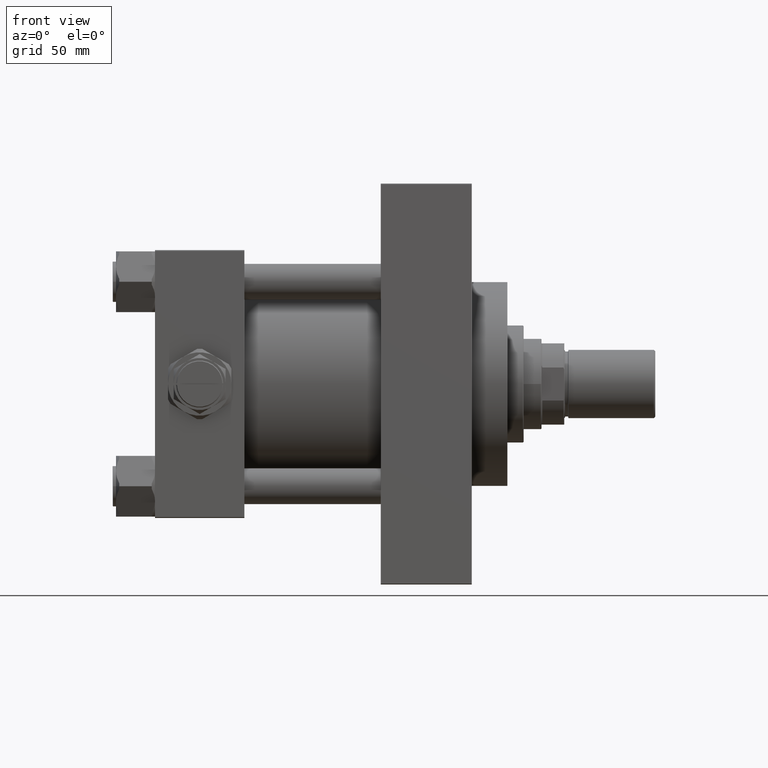
[diagram: clean part render]
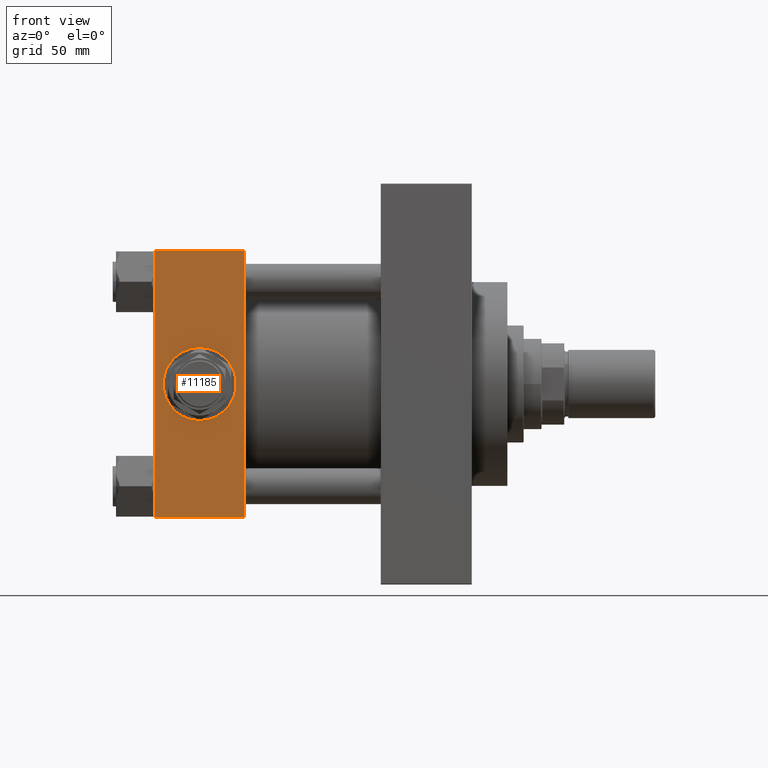
[diagram: same view with one face highlighted and labeled with its STEP entity id]
A machine part, front view. The second image highlights one B-rep face of the part: STEP entity #11185.
In plain terms, the highlighted planar face has unit normal (0, 1, -0).
Its self-contained STEP definition (entity closure, byte-faithful):
#602 = DIRECTION ( 'NONE',  ( 0.000000000000000000, -1.000000000000000000, -8.673617379884036705E-17 ) ) ;
#2237 = VERTEX_POINT ( 'NONE', #25948 ) ;
#2288 = ORIENTED_EDGE ( 'NONE', *, *, #45306, .T. ) ;
#2379 = LINE ( 'NONE', #30826, #13463 ) ;
#3202 = AXIS2_PLACEMENT_3D ( 'NONE', #5291, #36063, #44411 ) ;
#3345 = EDGE_CURVE ( 'NONE', #8961, #22411, #39315, .T. ) ;
#4733 = CARTESIAN_POINT ( 'NONE',  ( 55.00000000000000000, -82.49999999999997158, 82.50000000000001421 ) ) ;
#4941 = EDGE_LOOP ( 'NONE', ( #2288, #20155, #29588, #15335 ) ) ;
#5291 = CARTESIAN_POINT ( 'NONE',  ( 55.00000000000000000, -82.49999999999997158, 82.50000000000001421 ) ) ;
#6032 = FACE_OUTER_BOUND ( 'NONE', #4941, .T. ) ;
#8033 = DIRECTION ( 'NONE',  ( 0.000000000000000000, 0.000000000000000000, -1.000000000000000000 ) ) ;
#8961 = VERTEX_POINT ( 'NONE', #32134 ) ;
#9051 = EDGE_CURVE ( 'NONE', #2237, #22411, #30023, .T. ) ;
#9389 = EDGE_CURVE ( 'NONE', #8961, #43361, #41842, .T. ) ;
#11185 = ADVANCED_FACE ( 'NONE', ( #29008, #6032 ), #48679, .F. ) ;
#11674 = ORIENTED_EDGE ( 'NONE', *, *, #18645, .F. ) ;
#12301 = VERTEX_POINT ( 'NONE', #12810 ) ;
#12810 = CARTESIAN_POINT ( 'NONE',  ( 27.50000000000000355, -82.49999999999998579, 22.50000000000002132 ) ) ;
#13463 = VECTOR ( 'NONE', #46225, 1000.000000000000000 ) ;
#15258 = ORIENTED_EDGE ( 'NONE', *, *, #24891, .F. ) ;
#15335 = ORIENTED_EDGE ( 'NONE', *, *, #9389, .T. ) ;
#17240 = AXIS2_PLACEMENT_3D ( 'NONE', #23101, #602, #26884 ) ;
#18645 = EDGE_CURVE ( 'NONE', #12301, #43739, #18765, .T. ) ;
#18765 = CIRCLE ( 'NONE', #19608, 22.50000000000000711 ) ;
#19608 = AXIS2_PLACEMENT_3D ( 'NONE', #27231, #42630, #8033 ) ;
#20155 = ORIENTED_EDGE ( 'NONE', *, *, #9051, .T. ) ;
#22411 = VERTEX_POINT ( 'NONE', #46661 ) ;
#23101 = CARTESIAN_POINT ( 'NONE',  ( 27.50000000000000000, -82.49999999999998579, 1.387778780781445360E-14 ) ) ;
#23419 = EDGE_LOOP ( 'NONE', ( #15258, #11674 ) ) ;
#24891 = EDGE_CURVE ( 'NONE', #43739, #12301, #49497, .T. ) ;
#25575 = VECTOR ( 'NONE', #41416, 1000.000000000000000 ) ;
#25685 = CARTESIAN_POINT ( 'NONE',  ( 27.50000000000000000, -82.49999999999998579, -22.49999999999999289 ) ) ;
#25948 = CARTESIAN_POINT ( 'NONE',  ( 0.000000000000000000, -82.50000000000000000, -81.99999999999998579 ) ) ;
#26884 = DIRECTION ( 'NONE',  ( 0.000000000000000000, 0.000000000000000000, -1.000000000000000000 ) ) ;
#27231 = CARTESIAN_POINT ( 'NONE',  ( 27.50000000000000000, -82.49999999999998579, 1.387778780781445360E-14 ) ) ;
#29008 = FACE_BOUND ( 'NONE', #23419, .T. ) ;
#29588 = ORIENTED_EDGE ( 'NONE', *, *, #3345, .F. ) ;
#30023 = LINE ( 'NONE', #36154, #37889 ) ;
#30826 = CARTESIAN_POINT ( 'NONE',  ( 0.000000000000000000, -82.49999999999997158, 82.50000000000001421 ) ) ;
#32134 = CARTESIAN_POINT ( 'NONE',  ( 55.00000000000000000, -82.49999999999997158, 82.00000000000001421 ) ) ;
#33553 = CARTESIAN_POINT ( 'NONE',  ( 0.000000000000000000, -82.49999999999997158, 82.00000000000001421 ) ) ;
#33740 = VECTOR ( 'NONE', #42343, 1000.000000000000000 ) ;
#36063 = DIRECTION ( 'NONE',  ( 0.000000000000000000, 1.000000000000000000, -1.682156097916903588E-16 ) ) ;
#36154 = CARTESIAN_POINT ( 'NONE',  ( 55.00000000000000000, -82.50000000000000000, -81.99999999999998579 ) ) ;
#37889 = VECTOR ( 'NONE', #45176, 1000.000000000000000 ) ;
#38041 = CARTESIAN_POINT ( 'NONE',  ( 55.00000000000000000, -82.49999999999997158, 82.00000000000001421 ) ) ;
#39315 = LINE ( 'NONE', #4733, #25575 ) ;
#41416 = DIRECTION ( 'NONE',  ( 0.000000000000000000, -1.682156097916903588E-16, -1.000000000000000000 ) ) ;
#41842 = LINE ( 'NONE', #38041, #33740 ) ;
#42343 = DIRECTION ( 'NONE',  ( -1.000000000000000000, 0.000000000000000000, 0.000000000000000000 ) ) ;
#42630 = DIRECTION ( 'NONE',  ( 0.000000000000000000, -1.000000000000000000, -8.673617379884036705E-17 ) ) ;
#43361 = VERTEX_POINT ( 'NONE', #33553 ) ;
#43739 = VERTEX_POINT ( 'NONE', #25685 ) ;
#44411 = DIRECTION ( 'NONE',  ( 0.000000000000000000, 1.682156097916903588E-16, 1.000000000000000000 ) ) ;
#45176 = DIRECTION ( 'NONE',  ( 1.000000000000000000, 0.000000000000000000, 0.000000000000000000 ) ) ;
#45306 = EDGE_CURVE ( 'NONE', #43361, #2237, #2379, .T. ) ;
#46225 = DIRECTION ( 'NONE',  ( 0.000000000000000000, -1.682156097916903588E-16, -1.000000000000000000 ) ) ;
#46661 = CARTESIAN_POINT ( 'NONE',  ( 55.00000000000000000, -82.50000000000000000, -81.99999999999998579 ) ) ;
#48679 = PLANE ( 'NONE',  #3202 ) ;
#49497 = CIRCLE ( 'NONE', #17240, 22.50000000000000711 ) ;